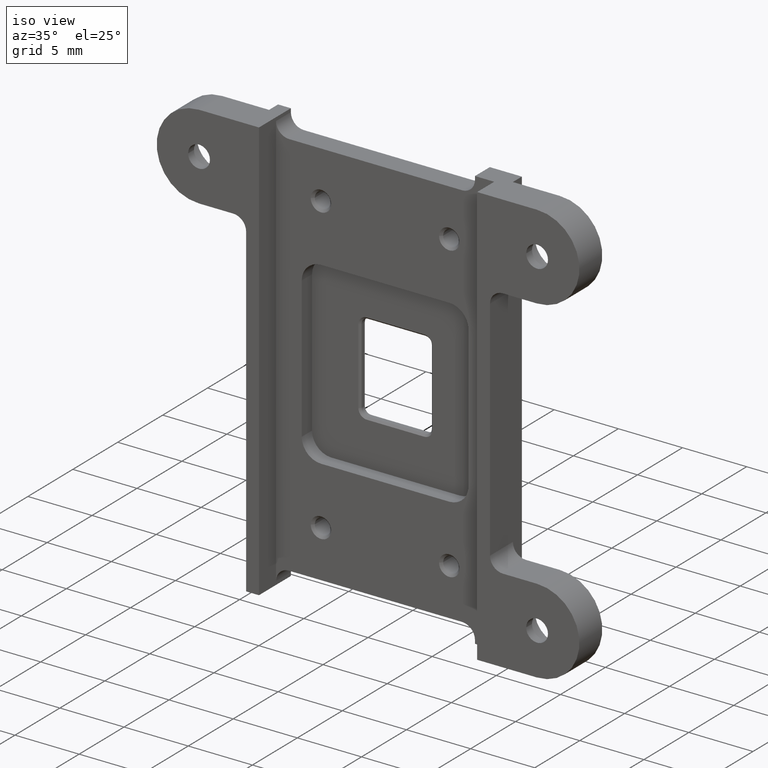
[diagram: clean part render]
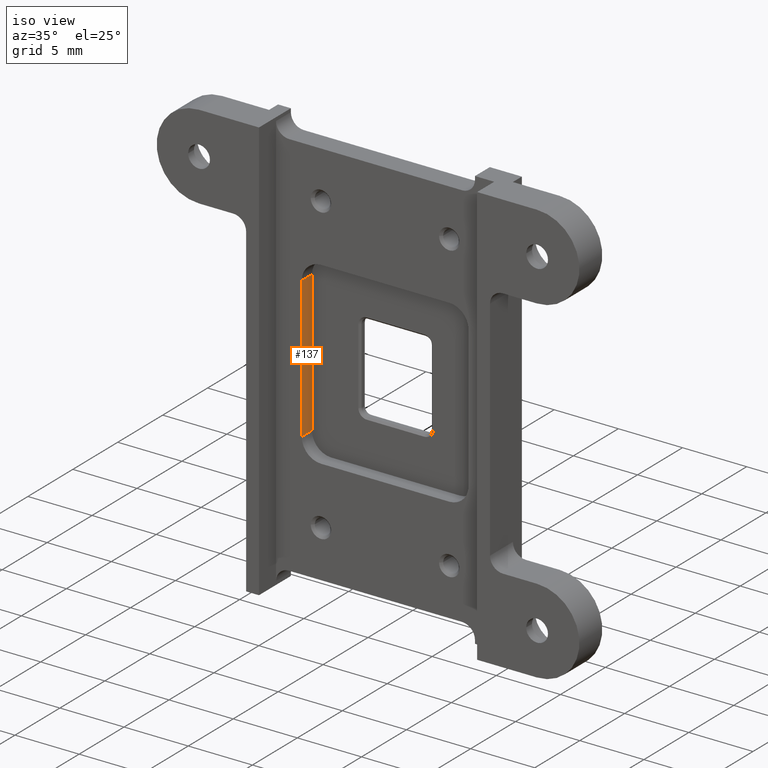
[diagram: same view with one face highlighted and labeled with its STEP entity id]
A machine part, iso view. The second image highlights one B-rep face of the part: STEP entity #137.
In plain terms, the highlighted planar face has unit normal (1, 0, 0).
Its self-contained STEP definition (entity closure, byte-faithful):
#137=ADVANCED_FACE('',(#248),#1070,.T.);
#248=FACE_OUTER_BOUND('',#397,.F.);
#397=EDGE_LOOP('',(#777,#778,#779,#780));
#777=ORIENTED_EDGE('',*,*,#1802,.F.);
#778=ORIENTED_EDGE('',*,*,#1810,.F.);
#779=ORIENTED_EDGE('',*,*,#1777,.T.);
#780=ORIENTED_EDGE('',*,*,#1809,.T.);
#1070=PLANE('',#2346);
#1353=LINE('',#3395,#1536);
#1366=LINE('',#3420,#1549);
#1371=LINE('',#3427,#1554);
#1372=LINE('',#3428,#1555);
#1536=VECTOR('',#2654,11.0000000000105);
#1549=VECTOR('',#2691,11.0000000000105);
#1554=VECTOR('',#2700,1.15);
#1555=VECTOR('',#2701,1.15);
#1777=EDGE_CURVE('',#2029,#2028,#1353,.T.);
#1802=EDGE_CURVE('',#2007,#2008,#1366,.T.);
#1809=EDGE_CURVE('',#2028,#2008,#1371,.T.);
#1810=EDGE_CURVE('',#2029,#2007,#1372,.T.);
#2007=VERTEX_POINT('',#3054);
#2008=VERTEX_POINT('',#3055);
#2028=VERTEX_POINT('',#3075);
#2029=VERTEX_POINT('',#3076);
#2346=AXIS2_PLACEMENT_3D('',#3547,#2898,#2899);
#2654=DIRECTION('',(0.,0.,1.));
#2691=DIRECTION('',(0.,0.,1.));
#2700=DIRECTION('',(0.,1.,0.));
#2701=DIRECTION('',(0.,1.,0.));
#2898=DIRECTION('',(1.,0.,0.));
#2899=DIRECTION('',(0.,0.,1.));
#3054=CARTESIAN_POINT('',(-6.49999255519133,-11.938,-5.49999962147356));
#3055=CARTESIAN_POINT('',(-6.49999255519168,-11.938,5.50000037853193));
#3075=CARTESIAN_POINT('',(-6.49999255519168,-13.088,5.50000037853193));
#3076=CARTESIAN_POINT('',(-6.49999255519133,-13.088,-5.49999962147357));
#3395=CARTESIAN_POINT('',(-6.49999255519134,-13.088,-5.49999962147558));
#3420=CARTESIAN_POINT('',(-6.49999255519133,-11.938,-5.49999962147557));
#3427=CARTESIAN_POINT('',(-6.49999255519168,-13.088,5.50000037853045));
#3428=CARTESIAN_POINT('',(-6.49999255519133,-13.088,-5.49999962147557));
#3547=CARTESIAN_POINT('',(-6.49999255519133,-13.1980000000001,-5.60999962147568));